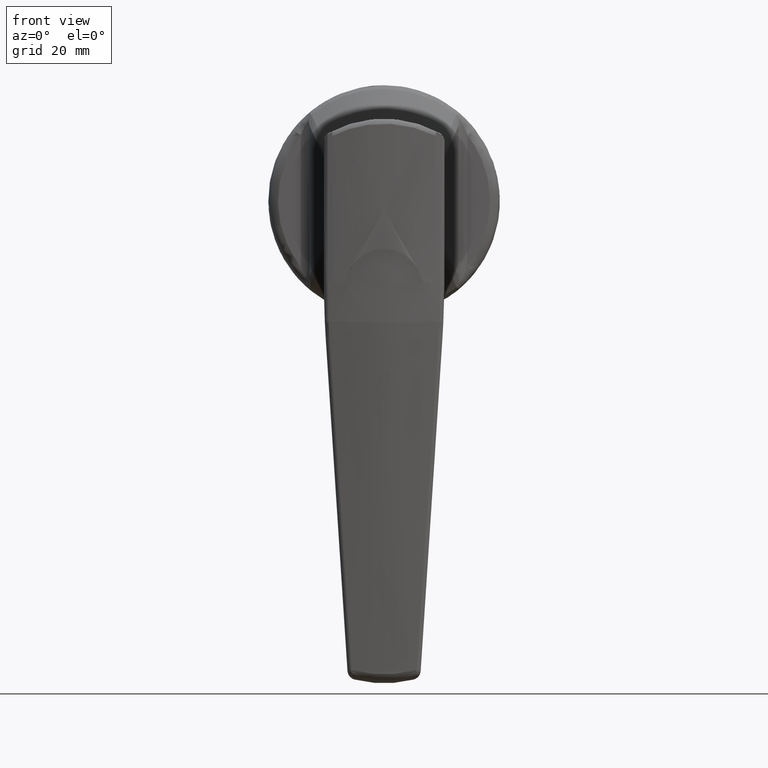
[diagram: clean part render]
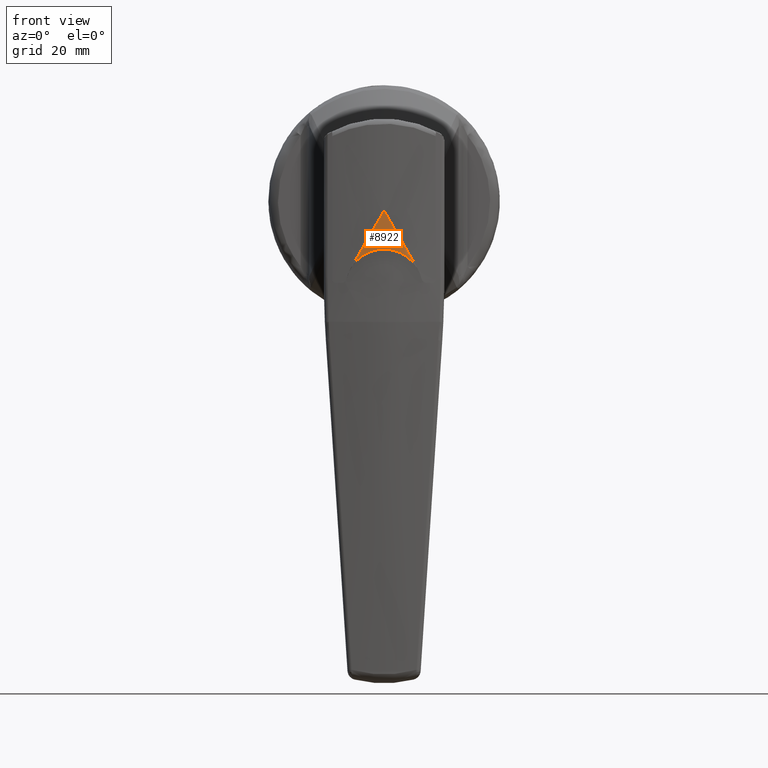
[diagram: same view with one face highlighted and labeled with its STEP entity id]
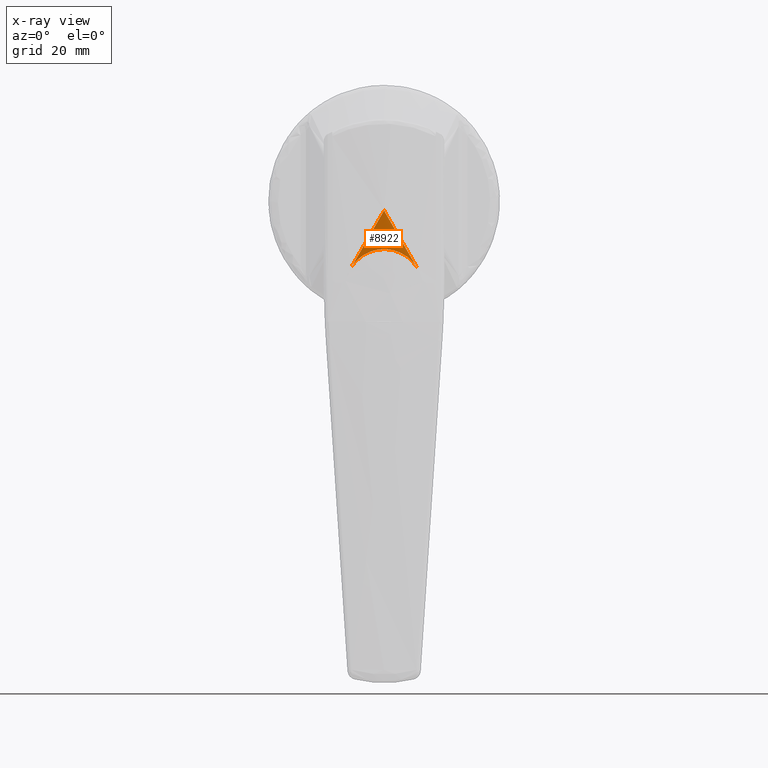
[diagram: x-ray of the same camera — body ghosted, the highlighted face saturated]
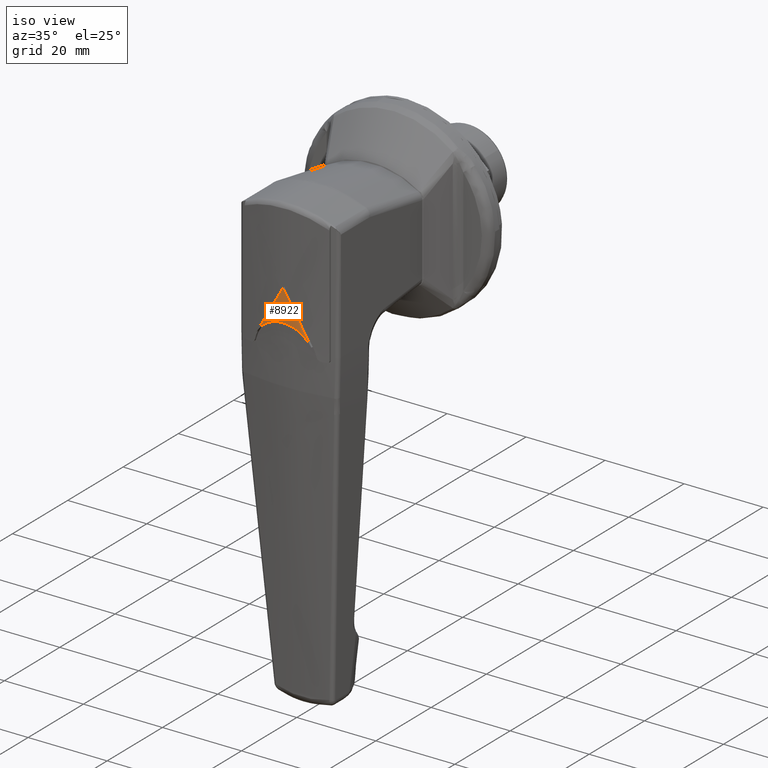
[diagram: same view with one face highlighted and labeled with its STEP entity id]
A machine part, front view. The second image highlights one B-rep face of the part: STEP entity #8922.
The next image is the same camera in x-ray: the body ghosted, the highlighted face saturated — about 0% of this face is hidden behind the body in this view.
A second angle (iso view) of the same face is appended — the face is thin or edge-on in the first view.
In plain terms, the highlighted face is a freeform B-spline surface patch.
Its self-contained STEP definition (entity closure, byte-faithful):
#8817=CARTESIAN_POINT('',(-44.542513451542163,-7.456813325398088,-14.300000511024880));
#8818=CARTESIAN_POINT('',(-44.542513451542163,-7.456813325398088,-1.692499987224377));
#8819=CARTESIAN_POINT('',(-45.470912632207799,0.080940059470275,-14.300000511024882));
#8820=CARTESIAN_POINT('',(-45.470912632207799,0.080940059470275,-1.692499987224377));
#8821=CARTESIAN_POINT('',(-44.522666464441606,7.616222425451778,-14.300000511024878));
#8822=CARTESIAN_POINT('',(-44.522666464441606,7.616222425451778,-1.692499987224377));
#8830=(BOUNDED_SURFACE()B_SPLINE_SURFACE(1,2,((#8817,#8819,#8821),(#8818,#8820,#8822)),.UNSPECIFIED.,.F.,.F.,.U.)B_SPLINE_SURFACE_WITH_KNOTS((2,2),(3,3),(0.0,12.607500523800510),(0.0,15.131003940010530),.UNSPECIFIED.)GEOMETRIC_REPRESENTATION_ITEM()RATIONAL_B_SPLINE_SURFACE(((1.0,0.990832612062950,0.996967473971736),(1.0,0.990832612062950,0.996967473971736)))REPRESENTATION_ITEM('')SURFACE());
#8831=CARTESIAN_POINT('',(-45.0,0.0,-2.0));
#8832=VERTEX_POINT('',#8831);
#8833=CARTESIAN_POINT('',(-44.605280324331403,-6.928203000000000,-13.999999999999821));
#8834=VERTEX_POINT('',#8833);
#8835=CARTESIAN_POINT('',(-45.0,3.735049E-015,-1.999999999999994));
#8836=CARTESIAN_POINT('',(-45.0,-3.475345658287470,-8.019475454089468));
#8837=CARTESIAN_POINT('',(-44.605280324331403,-6.928202999999991,-13.999999999999799));
#8845=(BOUNDED_CURVE()B_SPLINE_CURVE(2,(#8835,#8836,#8837),.UNSPECIFIED.,.F.,.U.)CURVE()GEOMETRIC_REPRESENTATION_ITEM()QUASI_UNIFORM_CURVE()RATIONAL_B_SPLINE_CURVE((1.0,0.998380985807890,1.0))REPRESENTATION_ITEM(''));
#8846=EDGE_CURVE('',#8832,#8834,#8845,.T.);
#8847=ORIENTED_EDGE('',*,*,#8846,.F.);
#8848=CARTESIAN_POINT('',(-44.605280291426197,6.928203287844370,-14.000000498560860));
#8849=VERTEX_POINT('',#8848);
#8850=CARTESIAN_POINT('',(-44.605280291426197,6.928203287844370,-14.000000498560860));
#8851=CARTESIAN_POINT('',(-45.0,3.475345803617253,-8.019475705808032));
#8852=CARTESIAN_POINT('',(-45.0,1.120515E-014,-2.000000000000020));
#8860=(BOUNDED_CURVE()B_SPLINE_CURVE(2,(#8850,#8851,#8852),.UNSPECIFIED.,.F.,.U.)CURVE()GEOMETRIC_REPRESENTATION_ITEM()QUASI_UNIFORM_CURVE()RATIONAL_B_SPLINE_CURVE((1.0,0.998380985672621,1.0))REPRESENTATION_ITEM(''));
#8861=EDGE_CURVE('',#8849,#8832,#8860,.T.);
#8862=ORIENTED_EDGE('',*,*,#8861,.F.);
#8863=CARTESIAN_POINT('',(-44.605280324331403,-6.928203000000000,-13.999999999999821));
#8864=CARTESIAN_POINT('',(-44.625218080945572,-6.753795105222575,-13.697916277869821));
#8865=CARTESIAN_POINT('',(-44.646527385639367,-6.560785525530712,-13.409043872662160));
#8866=CARTESIAN_POINT('',(-44.679718025037893,-6.243646215487444,-12.995294398806241));
#8867=CARTESIAN_POINT('',(-44.690986297770017,-6.133314075980319,-12.860648269584940));
#8868=CARTESIAN_POINT('',(-44.713793201643931,-5.903276583283329,-12.597981549013610));
#8869=CARTESIAN_POINT('',(-44.725344957674913,-5.783431702615586,-12.469821132785841));
#8870=CARTESIAN_POINT('',(-44.760109192508153,-5.410318000285617,-12.096416225327170));
#8871=CARTESIAN_POINT('',(-44.783016980629029,-5.147936480661700,-11.866531816711101));
#8872=CARTESIAN_POINT('',(-44.827174007089504,-4.596879984034827,-11.443371569417330));
#8873=CARTESIAN_POINT('',(-44.848426534342813,-4.308202169113373,-11.250100047830790));
#8874=CARTESIAN_POINT('',(-44.878244671629517,-3.855156301634156,-10.987995385516680));
#8875=CARTESIAN_POINT('',(-44.887840517331561,-3.700792347214236,-10.905275578439641));
#8876=CARTESIAN_POINT('',(-44.901612194046550,-3.464084133109518,-10.788352076500599));
#8877=CARTESIAN_POINT('',(-44.906091099194647,-3.384445762833559,-10.750639462021679));
#8878=CARTESIAN_POINT('',(-44.914762839162272,-3.224604526694032,-10.678140469963671));
#8879=CARTESIAN_POINT('',(-44.918963256592242,-3.144272711961891,-10.643289595829220));
#8880=CARTESIAN_POINT('',(-44.939263000706113,-2.740581554041072,-10.475942951176631));
#8881=CARTESIAN_POINT('',(-44.953254618215098,-2.411151810114423,-10.364081284351849));
#8882=CARTESIAN_POINT('',(-44.976117925509683,-1.739524170201096,-10.183673283140600));
#8883=CARTESIAN_POINT('',(-44.984991484076573,-1.397327335107405,-10.115123529070980));
#8884=CARTESIAN_POINT('',(-44.992487242440419,-0.961304767172378,-10.057479576052749));
#8885=CARTESIAN_POINT('',(-44.993807852832362,-0.873541640898079,-10.047348249216670));
#8886=CARTESIAN_POINT('',(-44.996064890977209,-0.698383277519132,-10.030056106514831));
#8887=CARTESIAN_POINT('',(-44.997003712523252,-0.610885102492320,-10.022876821643850));
#8888=CARTESIAN_POINT('',(-44.999254314645754,-0.348630338980581,-10.005679758029240));
#8889=CARTESIAN_POINT('',(-45.000000256545640,-0.174113255156506,-9.999998043839279));
#8890=CARTESIAN_POINT('',(-44.999999486710202,0.348496080476814,-10.000003913834460));
#8891=CARTESIAN_POINT('',(-44.997014277867137,0.695650304816233,-10.022670940695070));
#8892=CARTESIAN_POINT('',(-44.988153908478523,1.214496964165083,-10.090801292748241));
#8893=CARTESIAN_POINT('',(-44.984469982903562,1.387130769969526,-10.119217522852940));
#8894=CARTESIAN_POINT('',(-44.977860179219370,1.645598882090551,-10.170586204859140));
#8895=CARTESIAN_POINT('',(-44.975471974688332,1.731815078883792,-10.189201284822429));
#8896=CARTESIAN_POINT('',(-44.970357335452562,1.903389710667387,-10.229229919384160));
#8897=CARTESIAN_POINT('',(-44.967635715384873,1.988610398815327,-10.250605668417220));
#8898=CARTESIAN_POINT('',(-44.953239804572561,2.411923299090459,-10.364191778630641));
#8899=CARTESIAN_POINT('',(-44.939203812194748,2.741680015522324,-10.476436388258460));
#8900=CARTESIAN_POINT('',(-44.906917720466403,3.383894851212073,-10.742584870397989));
#8901=CARTESIAN_POINT('',(-44.888665186623271,3.696352911067659,-10.896488596019450));
#8902=CARTESIAN_POINT('',(-44.858738477745959,4.151757960225170,-11.159412991773300));
#8903=CARTESIAN_POINT('',(-44.848306923449833,4.301729490385656,-11.252716628867820));
#8904=CARTESIAN_POINT('',(-44.827009732448403,4.593062057868646,-11.447558437393139));
#8905=CARTESIAN_POINT('',(-44.816117858995511,4.734868858118469,-11.549317292517721));
#8906=CARTESIAN_POINT('',(-44.782932899332792,5.148957790316391,-11.867350029694130));
#8907=CARTESIAN_POINT('',(-44.760130132645003,5.409956156509391,-12.096326141497659));
#8908=CARTESIAN_POINT('',(-44.725768626397191,5.778951857482615,-12.465204331718279));
#8909=CARTESIAN_POINT('',(-44.714288483263147,5.898188156436492,-12.592412906905400));
#8910=CARTESIAN_POINT('',(-44.697139055495057,6.071299108700068,-12.789723370373430));
#8911=CARTESIAN_POINT('',(-44.691434412363293,6.128044715258076,-12.856577359952491));
#8912=CARTESIAN_POINT('',(-44.680067737804862,6.239593127585385,-12.992485038609971));
#8913=CARTESIAN_POINT('',(-44.674410563346591,6.294345361291002,-13.061487129559421));
#8914=CARTESIAN_POINT('',(-44.646484471650808,6.561250872952475,-13.409458271452040));
#8915=CARTESIAN_POINT('',(-44.625133213526503,6.754537500629316,-13.699202092577460));
#8916=CARTESIAN_POINT('',(-44.605280291426197,6.928203287844370,-14.000000498560860));
#8917=B_SPLINE_CURVE_WITH_KNOTS('',3,(#8863,#8864,#8865,#8866,#8867,#8868,#8869,#8870,#8871,#8872,#8873,#8874,#8875,#8876,#8877,#8878,#8879,#8880,#8881,#8882,#8883,#8884,#8885,#8886,#8887,#8888,#8889,#8890,#8891,#8892,#8893,#8894,#8895,#8896,#8897,#8898,#8899,#8900,#8901,#8902,#8903,#8904,#8905,#8906,#8907,#8908,#8909,#8910,#8911,#8912,#8913,#8914,#8915,#8916),.UNSPECIFIED.,.F.,.U.,(4,2,2,2,2,2,2,2,2,2,2,2,2,2,2,2,2,2,2,2,2,2,2,2,2,2,4),(0.0,0.062500000000000,0.093750000000000,0.125000000000000,0.187500000000000,0.250000000000000,0.281250000000000,0.296875000000000,0.312500000000000,0.375000000000000,0.437500000000000,0.453125000000000,0.468750000000000,0.500000000000000,0.562500000000000,0.593750000000000,0.609375000000000,0.625000000000000,0.687500000000000,0.750000000000000,0.781250000000000,0.812500000000000,0.874999999999999,0.906249999999999,0.921874999999999,0.937499999999999,1.0),.UNSPECIFIED.);
#8918=EDGE_CURVE('',#8834,#8849,#8917,.T.);
#8919=ORIENTED_EDGE('',*,*,#8918,.F.);
#8920=EDGE_LOOP('',(#8847,#8862,#8919));
#8921=FACE_OUTER_BOUND('',#8920,.T.);
#8922=ADVANCED_FACE('',(#8921),#8830,.T.);